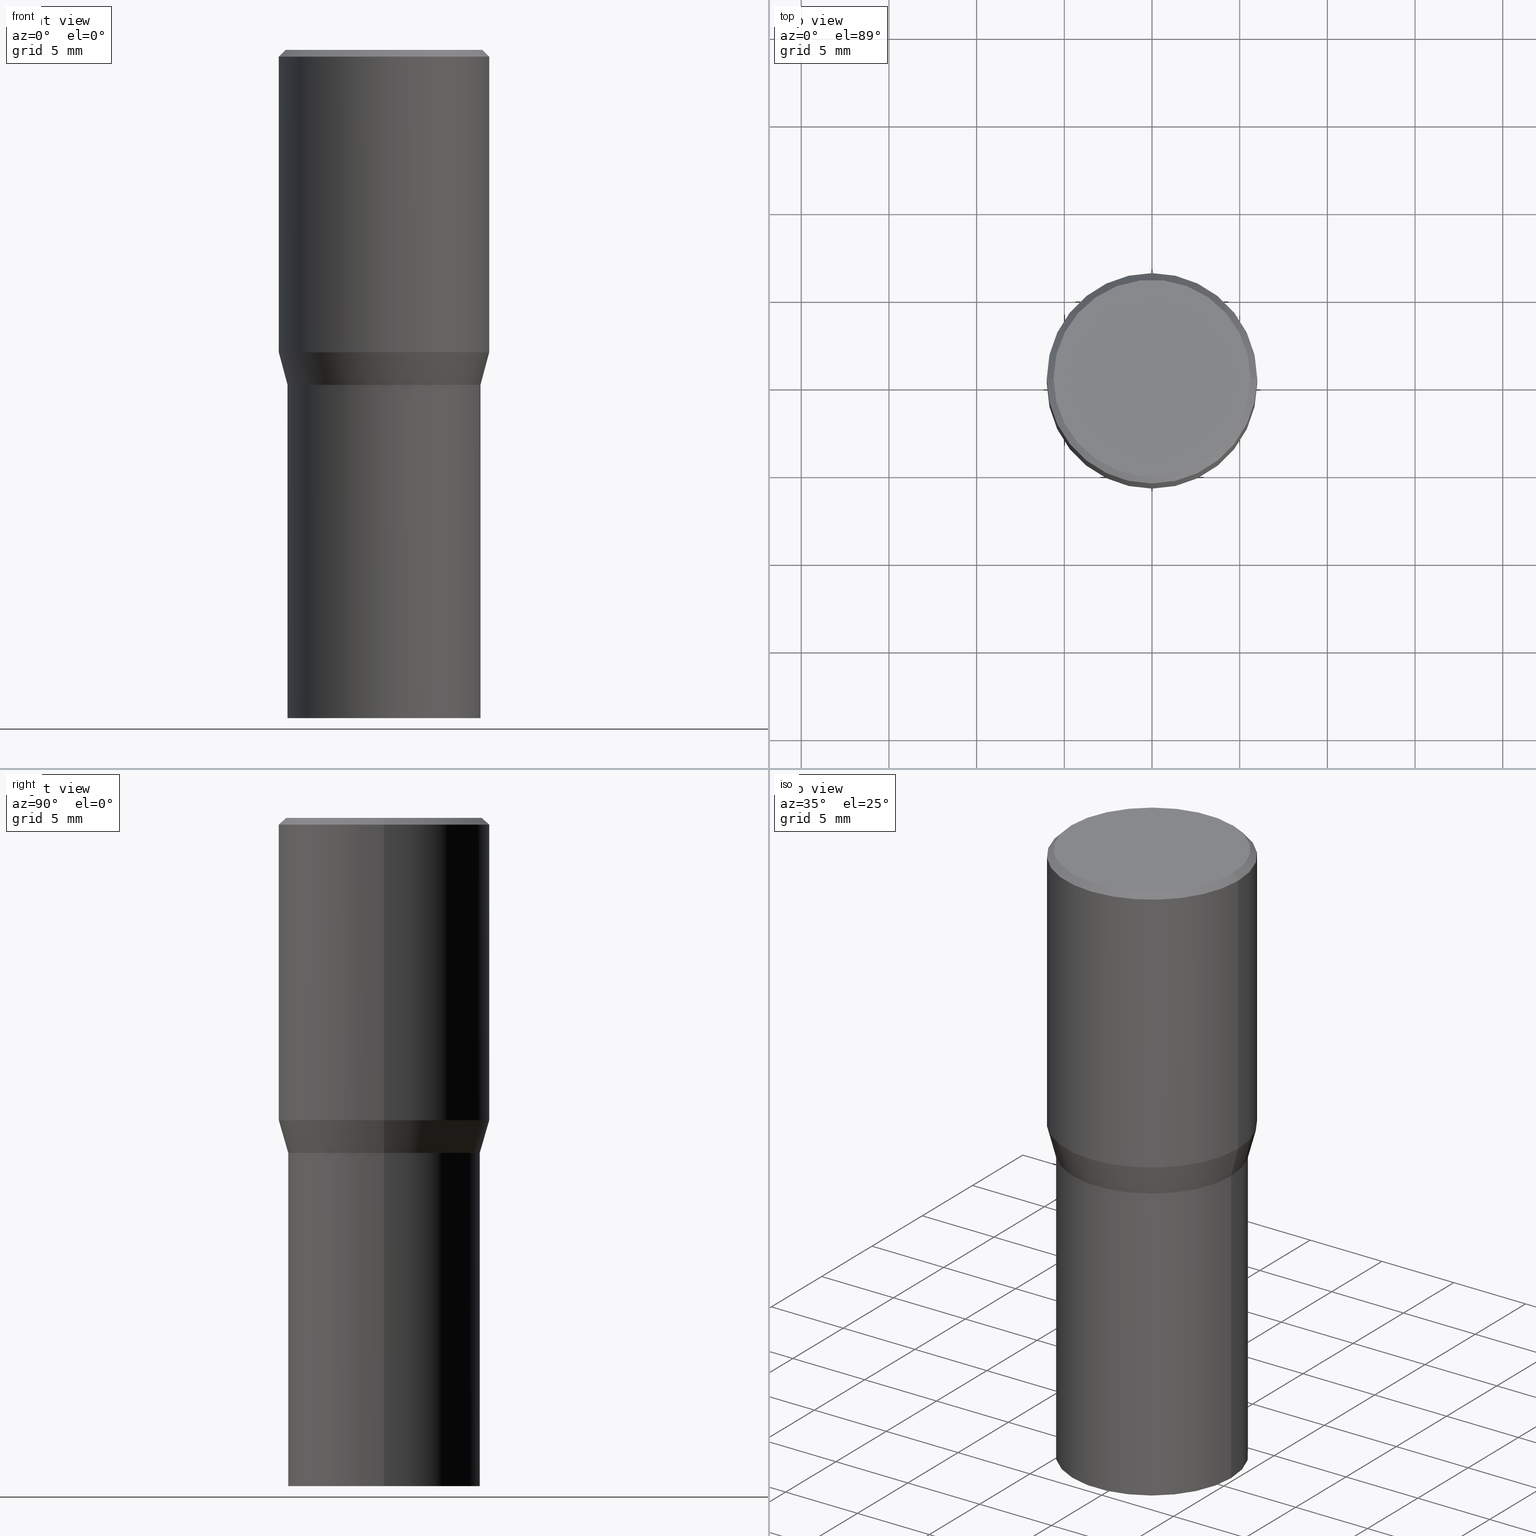
[diagram: canonical four-view strip — front | top / right | iso, engineering-drawing reading convention]
A machine part, canonical four-view strip (front | top / right | iso — engineering-drawing reading convention). The complete STEP part file that produces these views, byte-faithful:
ISO-10303-21;
HEADER;
FILE_DESCRIPTION (( 'STEP AP203' ),
    '1' );
FILE_NAME ('49276.STEP',
    '2024-03-12T20:07:03',
    ( '' ),
    ( '' ),
    'SwSTEP 2.0',
    'SolidWorks 2023',
    '' );
FILE_SCHEMA (( 'CONFIG_CONTROL_DESIGN' ));
ENDSEC;

DATA;
#1 = VECTOR ( 'NONE', #439, 39.37007874015748143 ) ;
#2 = CC_DESIGN_APPROVAL ( #101, ( #182 ) ) ;
#3 = DIRECTION ( 'NONE',  ( 1.000000000000000000, -6.982962677686266711E-15, 4.876176775795935793E-29 ) ) ;
#4 = LOCAL_TIME ( 16, 7, 3.000000000000000000, #427 ) ;
#5 = VERTEX_POINT ( 'NONE', #408 ) ;
#6 = PERSON_AND_ORGANIZATION ( #405, #64 ) ;
#7 = DIRECTION ( 'NONE',  ( -1.000000000000000000, 6.982962677686266711E-15, 0.000000000000000000 ) ) ;
#8 = APPROVAL_ROLE ( '' ) ;
#9 = LINE ( 'NONE', #434, #375 ) ;
#10 = ADVANCED_FACE ( 'NONE', ( #53 ), #48, .T. ) ;
#11 = CARTESIAN_POINT ( 'NONE',  ( 0.2212000000000000077, -1.595182002131672613E-15, 4.701447564593453210E-17 ) ) ;
#12 = DIRECTION ( 'NONE',  ( -2.445468806185136877E-29, 3.491481338843145188E-15, 1.000000000000000000 ) ) ;
#13 = DIRECTION ( 'NONE',  ( 1.000000000000000000, -6.982962677686266711E-15, 0.000000000000000000 ) ) ;
#14 = EDGE_LOOP ( 'NONE', ( #140, #112, #360, #310 ) ) ;
#15 = CARTESIAN_POINT ( 'NONE',  ( 0.2160500000000000198, -4.134263053324163313E-15, -0.7519999999999998908 ) ) ;
#16 = AXIS2_PLACEMENT_3D ( 'NONE', #93, #60, #86 ) ;
#17 = SECURITY_CLASSIFICATION ( '', '', #30 ) ;
#18 = DIRECTION ( 'NONE',  ( 1.000000000000000000, -6.982962677686266711E-15, 0.000000000000000000 ) ) ;
#19 = CARTESIAN_POINT ( 'NONE',  ( 0.000000000000000000, 0.000000000000000000, 0.000000000000000000 ) ) ;
#20 = EDGE_LOOP ( 'NONE', ( #74, #349 ) ) ;
#21 = CC_DESIGN_PERSON_AND_ORGANIZATION_ASSIGNMENT ( #217, #391, ( #17 ) ) ;
#22 = DIMENSIONAL_EXPONENTS ( 1.000000000000000000, 0.000000000000000000, 0.000000000000000000, 0.000000000000000000, 0.000000000000000000, 0.000000000000000000, 0.000000000000000000 ) ;
#23 = CONICAL_SURFACE ( 'NONE', #87, 0.2361999999999999933, 0.7853981633974459475 ) ;
#24 = DIRECTION ( 'NONE',  ( -2.445468806185136597E-29, 3.491481338843145583E-15, 1.000000000000000000 ) ) ;
#25 = AXIS2_PLACEMENT_3D ( 'NONE', #65, #346, #26 ) ;
#26 = DIRECTION ( 'NONE',  ( 1.000000000000000000, 0.000000000000000000, 0.000000000000000000 ) ) ;
#27 = ORIENTED_EDGE ( 'NONE', *, *, #52, .F. ) ;
#28 = CARTESIAN_POINT ( 'NONE',  ( 1.838992542251222813E-29, -2.625593966810045497E-15, -0.7520000000000001128 ) ) ;
#29 = AXIS2_PLACEMENT_3D ( 'NONE', #19, #219, #267 ) ;
#30 = SECURITY_CLASSIFICATION_LEVEL ( 'unclassified' ) ;
#31 = DIRECTION ( 'NONE',  ( 1.000000000000000000, -6.982962677686265922E-15, 4.876176775795935793E-29 ) ) ;
#32 = DATE_TIME_ROLE ( 'creation_date' ) ;
#33 = PLANE ( 'NONE',  #432 ) ;
#34 = ORIENTED_EDGE ( 'NONE', *, *, #447, .F. ) ;
#35 = PERSON_AND_ORGANIZATION_ROLE ( 'design_supplier' ) ;
#36 = DIRECTION ( 'NONE',  ( 1.000000000000000000, -6.982962677686266711E-15, 0.000000000000000000 ) ) ;
#37 = ORIENTED_EDGE ( 'NONE', *, *, #436, .T. ) ;
#38 = ORIENTED_EDGE ( 'NONE', *, *, #144, .F. ) ;
#39 = PERSON_AND_ORGANIZATION ( #405, #64 ) ;
#40 = CONICAL_SURFACE ( 'NONE', #235, 0.2160500000000000198, 0.7853981633977554777 ) ;
#41 = DIRECTION ( 'NONE',  ( -2.445468806185136597E-29, 3.491481338843145583E-15, 1.000000000000000000 ) ) ;
#42 = VERTEX_POINT ( 'NONE', #189 ) ;
#43 = COORDINATED_UNIVERSAL_TIME_OFFSET ( 5, 0, .BEHIND. ) ;
#44 = CARTESIAN_POINT ( 'NONE',  ( 3.668203209277704895E-29, -5.237222008264718177E-15, -1.500000000000000222 ) ) ;
#45 = EDGE_CURVE ( 'NONE', #288, #167, #221, .T. ) ;
#46 = APPLICATION_CONTEXT ( 'configuration controlled 3d designs of mechanical parts and assemblies' ) ;
#47 = FACE_OUTER_BOUND ( 'NONE', #426, .T. ) ;
#48 = CONICAL_SURFACE ( 'NONE', #16, 0.2165500000000000203, 0.2617993877991505736 ) ;
#49 = PLANE ( 'NONE',  #365 ) ;
#50 = AXIS2_PLACEMENT_3D ( 'NONE', #56, #297, #123 ) ;
#51 = DIRECTION ( 'NONE',  ( -1.000000000000000000, 6.982962677686266711E-15, 0.000000000000000000 ) ) ;
#52 = EDGE_CURVE ( 'NONE', #55, #5, #54, .T. ) ;
#53 = FACE_OUTER_BOUND ( 'NONE', #395, .T. ) ;
#54 = LINE ( 'NONE', #205, #192 ) ;
#55 = VERTEX_POINT ( 'NONE', #366 ) ;
#56 = CARTESIAN_POINT ( 'NONE',  ( 1.838992542251222813E-29, -2.625593966810045497E-15, -0.7520000000000001128 ) ) ;
#57 = ORIENTED_EDGE ( 'NONE', *, *, #118, .T. ) ;
#58 = DIRECTION ( 'NONE',  ( -2.445468806185136597E-29, 3.491481338843145583E-15, 1.000000000000000000 ) ) ;
#59 = CIRCLE ( 'NONE', #343, 0.2160500000000000198 ) ;
#60 = DIRECTION ( 'NONE',  ( -2.445468806185136597E-29, 3.491481338843145583E-15, 1.000000000000000000 ) ) ;
#61 = CYLINDRICAL_SURFACE ( 'NONE', #81, 0.2361999999999999933 ) ;
#62 = ADVANCED_FACE ( 'NONE', ( #251 ), #78, .F. ) ;
#63 = FACE_OUTER_BOUND ( 'NONE', #14, .T. ) ;
#64 = ORGANIZATION ( 'UNSPECIFIED', 'UNSPECIFIED', '' ) ;
#65 = CARTESIAN_POINT ( 'NONE',  ( 0.000000000000000000, 0.000000000000000000, 0.000000000000000000 ) ) ;
#66 = EDGE_CURVE ( 'NONE', #79, #252, #308, .T. ) ;
#67 = ORIENTED_EDGE ( 'NONE', *, *, #316, .T. ) ;
#68 = DIRECTION ( 'NONE',  ( -2.445468806185136597E-29, 3.491481338843145583E-15, 1.000000000000000000 ) ) ;
#69 = APPROVAL_STATUS ( 'not_yet_approved' ) ;
#70 = AXIS2_PLACEMENT_3D ( 'NONE', #164, #387, #419 ) ;
#71 = ORIENTED_EDGE ( 'NONE', *, *, #447, .T. ) ;
#72 = APPROVAL_DATE_TIME ( #104, #369 ) ;
#73 = FACE_OUTER_BOUND ( 'NONE', #133, .T. ) ;
#74 = ORIENTED_EDGE ( 'NONE', *, *, #45, .F. ) ;
#75 = DATE_AND_TIME ( #254, #177 ) ;
#76 = DIRECTION ( 'NONE',  ( 2.438088387897960049E-29, -3.491481338843145188E-15, -1.000000000000000000 ) ) ;
#77 = ORIENTED_EDGE ( 'NONE', *, *, #389, .F. ) ;
#78 = PLANE ( 'NONE',  #351 ) ;
#79 = VERTEX_POINT ( 'NONE', #170 ) ;
#80 = CALENDAR_DATE ( 2024, 12, 3 ) ;
#81 = AXIS2_PLACEMENT_3D ( 'NONE', #272, #100, #198 ) ;
#82 = DIRECTION ( 'NONE',  ( -0.7071067811867647324, 7.493145998871139866E-15, 0.7071067811863303021 ) ) ;
#83 = DIRECTION ( 'NONE',  ( 0.7071067811865459074, -7.319954787623251312E-15, -0.7071067811865492381 ) ) ;
#84 = EDGE_CURVE ( 'NONE', #278, #461, #342, .T. ) ;
#85 = DIRECTION ( 'NONE',  ( 1.000000000000000000, -6.982962677686266711E-15, 0.000000000000000000 ) ) ;
#86 = DIRECTION ( 'NONE',  ( 1.000000000000000000, -6.982962677686266711E-15, 0.000000000000000000 ) ) ;
#87 = AXIS2_PLACEMENT_3D ( 'NONE', #323, #117, #7 ) ;
#88 = CARTESIAN_POINT ( 'NONE',  ( 0.2165500000000001035, -1.512160567852961809E-15, 1.055936080798610456E-29 ) ) ;
#89 = CC_DESIGN_SECURITY_CLASSIFICATION ( #17, ( #321 ) ) ;
#90 = EDGE_LOOP ( 'NONE', ( #397, #300, #243, #454 ) ) ;
#91 = CARTESIAN_POINT ( 'NONE',  ( 3.668203209277705088E-31, -5.237222008264718399E-17, -0.01499999999999999944 ) ) ;
#92 = CARTESIAN_POINT ( 'NONE',  ( 3.576687321579069994E-29, -5.368277968210015545E-15, -1.500000000000000222 ) ) ;
#93 = CARTESIAN_POINT ( 'NONE',  ( 1.838992542251222813E-29, -2.625593966810045497E-15, -0.7520000000000001128 ) ) ;
#94 = VERTEX_POINT ( 'NONE', #138 ) ;
#95 = FACE_OUTER_BOUND ( 'NONE', #356, .T. ) ;
#96 = ADVANCED_FACE ( 'NONE', ( #73 ), #208, .F. ) ;
#97 = DIRECTION ( 'NONE',  ( -2.445468806185136597E-29, 3.491481338843145583E-15, 1.000000000000000000 ) ) ;
#98 =( LENGTH_UNIT ( ) NAMED_UNIT ( * ) SI_UNIT ( $, .METRE. ) );
#99 = LOCAL_TIME ( 16, 7, 3.000000000000000000, #43 ) ;
#100 = DIRECTION ( 'NONE',  ( -2.445468806185136597E-29, 3.491481338843145583E-15, 1.000000000000000000 ) ) ;
#101 = APPROVAL ( #325, 'UNSPECIFIED' ) ;
#102 = CALENDAR_DATE ( 2024, 12, 3 ) ;
#103 = ORIENTED_EDGE ( 'NONE', *, *, #121, .F. ) ;
#104 = DATE_AND_TIME ( #210, #216 ) ;
#105 = LINE ( 'NONE', #175, #1 ) ;
#106 = CIRCLE ( 'NONE', #328, 0.2212000000000000077 ) ;
#107 = CARTESIAN_POINT ( 'NONE',  ( 1.512160567852979361E-15, 0.2165499999999973835, -0.7520000000000008900 ) ) ;
#108 = EDGE_LOOP ( 'NONE', ( #67, #306, #314, #27 ) ) ;
#109 = ORIENTED_EDGE ( 'NONE', *, *, #185, .T. ) ;
#110 = PRODUCT_DEFINITION_SHAPE ( 'NONE', 'NONE',  #182 ) ;
#111 = LINE ( 'NONE', #372, #416 ) ;
#112 = ORIENTED_EDGE ( 'NONE', *, *, #442, .T. ) ;
#113 = CALENDAR_DATE ( 2024, 12, 3 ) ;
#114 = DIRECTION ( 'NONE',  ( -2.445468806185136597E-29, 3.491481338843145583E-15, 1.000000000000000000 ) ) ;
#115 = AXIS2_PLACEMENT_3D ( 'NONE', #290, #213, #257 ) ;
#116 = AXIS2_PLACEMENT_3D ( 'NONE', #28, #165, #377 ) ;
#117 = DIRECTION ( 'NONE',  ( 2.445468806185136597E-29, -3.491481338843145583E-15, -1.000000000000000000 ) ) ;
#118 = EDGE_CURVE ( 'NONE', #42, #5, #363, .T. ) ;
#119 = FACE_OUTER_BOUND ( 'NONE', #108, .T. ) ;
#120 = DIRECTION ( 'NONE',  ( -2.445468806185136597E-29, 3.491481338843145583E-15, 1.000000000000000000 ) ) ;
#121 = EDGE_CURVE ( 'NONE', #167, #461, #9, .T. ) ;
#122 = DIRECTION ( 'NONE',  ( -2.445468806185136597E-29, 3.491481338843145583E-15, 1.000000000000000000 ) ) ;
#123 = DIRECTION ( 'NONE',  ( 1.000000000000000000, -6.982962677686266711E-15, 0.000000000000000000 ) ) ;
#124 = DIRECTION ( 'NONE',  ( 2.445468806185136597E-29, -3.491481338843145583E-15, -1.000000000000000000 ) ) ;
#125 = EDGE_CURVE ( 'NONE', #146, #155, #415, .T. ) ;
#126 = FACE_OUTER_BOUND ( 'NONE', #347, .T. ) ;
#127 = AXIS2_PLACEMENT_3D ( 'NONE', #211, #114, #464 ) ;
#128 = AXIS2_PLACEMENT_3D ( 'NONE', #371, #124, #51 ) ;
#129 =( NAMED_UNIT ( * ) PLANE_ANGLE_UNIT ( ) SI_UNIT ( $, .RADIAN. ) );
#130 = ADVANCED_FACE ( 'NONE', ( #286 ), #40, .T. ) ;
#131 = CARTESIAN_POINT ( 'NONE',  ( 0.000000000000000000, 0.000000000000000000, 0.000000000000000000 ) ) ;
#132 = AXIS2_PLACEMENT_3D ( 'NONE', #260, #24, #18 ) ;
#133 = EDGE_LOOP ( 'NONE', ( #209, #249, #266, #212 ) ) ;
#134 = CARTESIAN_POINT ( 'NONE',  ( 1.838992542251222532E-29, -2.625593966810045103E-15, -0.7519999999999998908 ) ) ;
#135 = APPROVAL_STATUS ( 'not_yet_approved' ) ;
#136 = CARTESIAN_POINT ( 'NONE',  ( -0.2160500000000000198, -1.087817159026237112E-15, -0.7519999999999998908 ) ) ;
#137 = ADVANCED_FACE ( 'NONE', ( #183 ), #33, .F. ) ;
#138 = CARTESIAN_POINT ( 'NONE',  ( -0.2212000000000000077, 1.570817454345525709E-15, 4.701447564591265970E-17 ) ) ;
#139 = APPROVAL_PERSON_ORGANIZATION ( #279, #101, #174 ) ;
#140 = ORIENTED_EDGE ( 'NONE', *, *, #233, .F. ) ;
#141 = APPROVAL_DATE_TIME ( #400, #101 ) ;
#142 = DIRECTION ( 'NONE',  ( 1.000000000000000000, -6.982962677686264344E-15, 0.000000000000000000 ) ) ;
#143 = ORIENTED_EDGE ( 'NONE', *, *, #298, .T. ) ;
#144 = EDGE_CURVE ( 'NONE', #461, #278, #271, .T. ) ;
#145 = DESIGN_CONTEXT ( 'detailed design', #46, 'design' ) ;
#146 = VERTEX_POINT ( 'NONE', #180 ) ;
#147 = LINE ( 'NONE', #218, #382 ) ;
#148 = ORIENTED_EDGE ( 'NONE', *, *, #425, .T. ) ;
#149 = ADVANCED_FACE ( 'NONE', ( #255 ), #23, .T. ) ;
#150 = CARTESIAN_POINT ( 'NONE',  ( 1.838992542251222532E-29, -2.625593966810045103E-15, -0.7519999999999998908 ) ) ;
#151 = AXIS2_PLACEMENT_3D ( 'NONE', #396, #319, #3 ) ;
#152 = DIRECTION ( 'NONE',  ( 1.000000000000000000, -6.982962677686266711E-15, 0.000000000000000000 ) ) ;
#153 = DIRECTION ( 'NONE',  ( 1.000000000000000000, -6.982962677686267499E-15, 4.877828720335458505E-29 ) ) ;
#154 = LINE ( 'NONE', #446, #457 ) ;
#155 = VERTEX_POINT ( 'NONE', #403 ) ;
#156 = FACE_OUTER_BOUND ( 'NONE', #90, .T. ) ;
#157 = AXIS2_PLACEMENT_3D ( 'NONE', #228, #120, #411 ) ;
#158 = ORIENTED_EDGE ( 'NONE', *, *, #242, .F. ) ;
#159 = LINE ( 'NONE', #455, #370 ) ;
#160 = CC_DESIGN_PERSON_AND_ORGANIZATION_ASSIGNMENT ( #6, #318, ( #321 ) ) ;
#161 = CARTESIAN_POINT ( 'NONE',  ( 3.668203209277704895E-29, -5.237222008264718177E-15, -1.500000000000000222 ) ) ;
#162 = DIRECTION ( 'NONE',  ( 1.000000000000000000, -6.982962677686266711E-15, 4.876176775795935793E-29 ) ) ;
#163 = CONICAL_SURFACE ( 'NONE', #277, 0.2165500000000000203, 0.2617993877991505736 ) ;
#164 = CARTESIAN_POINT ( 'NONE',  ( 1.659654580432621677E-29, -2.369546886817807077E-15, -0.6786652016312719748 ) ) ;
#165 = DIRECTION ( 'NONE',  ( -2.445468806185136597E-29, 3.491481338843145583E-15, 1.000000000000000000 ) ) ;
#166 = CIRCLE ( 'NONE', #157, 0.2361999999999999933 ) ;
#167 = VERTEX_POINT ( 'NONE', #136 ) ;
#168 = EDGE_CURVE ( 'NONE', #288, #278, #105, .T. ) ;
#169 = COORDINATED_UNIVERSAL_TIME_OFFSET ( 5, 0, .BEHIND. ) ;
#170 = CARTESIAN_POINT ( 'NONE',  ( 0.2165500000000000203, -4.137754534663007109E-15, -0.7520000000000001128 ) ) ;
#171 = ORIENTED_EDGE ( 'NONE', *, *, #303, .T. ) ;
#172 = CARTESIAN_POINT ( 'NONE',  ( 1.838992542251222813E-29, -2.625593966810045497E-15, -0.7520000000000001128 ) ) ;
#173 = ORIENTED_EDGE ( 'NONE', *, *, #268, .T. ) ;
#174 = APPROVAL_ROLE ( '' ) ;
#175 = CARTESIAN_POINT ( 'NONE',  ( 0.2160500000000000198, -4.134263053324163313E-15, -0.7519999999999998908 ) ) ;
#176 = EDGE_CURVE ( 'NONE', #322, #240, #401, .T. ) ;
#177 = LOCAL_TIME ( 16, 7, 3.000000000000000000, #244 ) ;
#178 = EDGE_LOOP ( 'NONE', ( #359, #373 ) ) ;
#179 = APPROVAL_DATE_TIME ( #438, #239 ) ;
#180 = CARTESIAN_POINT ( 'NONE',  ( -0.2165500000000000203, -2.392727693248884740E-15, -1.500000000000000222 ) ) ;
#181 = COORDINATED_UNIVERSAL_TIME_OFFSET ( 5, 0, .BEHIND. ) ;
#182 = PRODUCT_DEFINITION ( 'UNKNOWN', '', #321, #145 ) ;
#183 = FACE_OUTER_BOUND ( 'NONE', #178, .T. ) ;
#184 = DIRECTION ( 'NONE',  ( -2.438088387897960049E-29, 3.491481338843145188E-15, 1.000000000000000000 ) ) ;
#185 = EDGE_CURVE ( 'NONE', #280, #55, #147, .T. ) ;
#186 = CARTESIAN_POINT ( 'NONE',  ( 0.2165500000000000203, -4.137754534663007109E-15, -0.7520000000000001128 ) ) ;
#187 = EDGE_LOOP ( 'NONE', ( #429, #465, #148, #57 ) ) ;
#188 = DIRECTION ( 'NONE',  ( 2.438088387897960049E-29, -3.491481338843145188E-15, -1.000000000000000000 ) ) ;
#189 = CARTESIAN_POINT ( 'NONE',  ( -0.2361999999999999933, 4.673423884151294145E-16, -0.01499999999999999944 ) ) ;
#190 = ORIENTED_EDGE ( 'NONE', *, *, #298, .F. ) ;
#191 = FACE_OUTER_BOUND ( 'NONE', #246, .T. ) ;
#192 = VECTOR ( 'NONE', #398, 39.37007874015748143 ) ;
#193 = ORIENTED_EDGE ( 'NONE', *, *, #442, .F. ) ;
#194 = AXIS2_PLACEMENT_3D ( 'NONE', #91, #330, #152 ) ;
#195 = DIRECTION ( 'NONE',  ( -2.445468806185136597E-29, 3.491481338843145583E-15, 1.000000000000000000 ) ) ;
#196 = LENGTH_MEASURE_WITH_UNIT ( LENGTH_MEASURE( 0.02539999999999999897 ), #98 );
#197 = CARTESIAN_POINT ( 'NONE',  ( -0.2361999999999999933, 1.597003564386848854E-15, -0.01499999999999999944 ) ) ;
#198 = DIRECTION ( 'NONE',  ( 1.000000000000000000, -6.982962677686266711E-15, 4.876176775795936353E-29 ) ) ;
#199 = AXIS2_PLACEMENT_3D ( 'NONE', #449, #122, #263 ) ;
#200 =( CONVERSION_BASED_UNIT ( 'INCH', #196 ) LENGTH_UNIT ( ) NAMED_UNIT ( #22 ) );
#201 = ORIENTED_EDGE ( 'NONE', *, *, #84, .F. ) ;
#202 = LINE ( 'NONE', #197, #352 ) ;
#203 = ADVANCED_FACE ( 'NONE', ( #466 ), #248, .T. ) ;
#204 = PERSON_AND_ORGANIZATION_ROLE ( 'design_owner' ) ;
#205 = CARTESIAN_POINT ( 'NONE',  ( 0.2361999999999999933, -1.649375784469496131E-15, 1.151752954443000088E-29 ) ) ;
#206 = AXIS2_PLACEMENT_3D ( 'NONE', #353, #41, #282 ) ;
#207 = SHAPE_DEFINITION_REPRESENTATION ( #110, #412 ) ;
#208 = CYLINDRICAL_SURFACE ( 'NONE', #443, 0.2165500000000001035 ) ;
#209 = ORIENTED_EDGE ( 'NONE', *, *, #268, .F. ) ;
#210 = CALENDAR_DATE ( 2024, 12, 3 ) ;
#211 = CARTESIAN_POINT ( 'NONE',  ( 1.837769807848130011E-29, -2.623848226140623599E-15, -0.7515000000000000568 ) ) ;
#212 = ORIENTED_EDGE ( 'NONE', *, *, #338, .F. ) ;
#213 = DIRECTION ( 'NONE',  ( -2.445468806185136597E-29, 3.491481338843145583E-15, 1.000000000000000000 ) ) ;
#214 = CLOSED_SHELL ( 'NONE', ( #96, #238, #341, #292, #10, #354, #417, #149, #253, #62, #130, #380 ) ) ;
#215 = CIRCLE ( 'NONE', #70, 0.2361999999999999933 ) ;
#216 = LOCAL_TIME ( 16, 7, 3.000000000000000000, #181 ) ;
#217 = PERSON_AND_ORGANIZATION ( #405, #64 ) ;
#218 = CARTESIAN_POINT ( 'NONE',  ( 0.2165500000000000203, -4.137754534663007109E-15, -0.7520000000000001128 ) ) ;
#219 = DIRECTION ( 'NONE',  ( -2.445468806185136597E-29, 3.491481338843145583E-15, 1.000000000000000000 ) ) ;
#220 = CARTESIAN_POINT ( 'NONE',  ( -0.2165500000000000203, -2.392727693248884740E-15, -0.7520000000000001128 ) ) ;
#221 = CIRCLE ( 'NONE', #132, 0.2160500000000000198 ) ;
#222 = VECTOR ( 'NONE', #384, 39.37007874015748143 ) ;
#223 = DIRECTION ( 'NONE',  ( -1.000000000000000000, 6.982962677686265922E-15, -4.876176775795935793E-29 ) ) ;
#224 = ORIENTED_EDGE ( 'NONE', *, *, #45, .T. ) ;
#225 = PLANE ( 'NONE',  #230 ) ;
#226 = MANIFOLD_SOLID_BREP ( 'Body-Move/Copy2[1]', #294 ) ;
#227 = ORIENTED_EDGE ( 'NONE', *, *, #125, .F. ) ;
#228 = CARTESIAN_POINT ( 'NONE',  ( 1.659654580432621677E-29, -2.369546886817807077E-15, -0.6786652016312719748 ) ) ;
#229 = AXIS2_PLACEMENT_3D ( 'NONE', #44, #358, #142 ) ;
#230 = AXIS2_PLACEMENT_3D ( 'NONE', #368, #188, #223 ) ;
#231 = DIRECTION ( 'NONE',  ( -2.445468806185136877E-29, 3.491481338843145188E-15, 1.000000000000000000 ) ) ;
#232 = DIRECTION ( 'NONE',  ( 1.000000000000000000, -6.982962677686266711E-15, 0.000000000000000000 ) ) ;
#233 = EDGE_CURVE ( 'NONE', #240, #42, #111, .T. ) ;
#234 = CARTESIAN_POINT ( 'NONE',  ( 0.000000000000000000, 0.000000000000000000, 0.000000000000000000 ) ) ;
#235 = AXIS2_PLACEMENT_3D ( 'NONE', #150, #428, #36 ) ;
#236 = CC_DESIGN_APPROVAL ( #239, ( #321 ) ) ;
#237 = CARTESIAN_POINT ( 'NONE',  ( -0.2165500000000001035, 1.538680294288497688E-15, -1.065195393794700483E-29 ) ) ;
#238 = ADVANCED_FACE ( 'NONE', ( #327 ), #402, .T. ) ;
#239 = APPROVAL ( #69, 'UNSPECIFIED' ) ;
#240 = VERTEX_POINT ( 'NONE', #299 ) ;
#241 = DATE_AND_TIME ( #102, #4 ) ;
#242 = EDGE_CURVE ( 'NONE', #252, #79, #247, .T. ) ;
#243 = ORIENTED_EDGE ( 'NONE', *, *, #273, .T. ) ;
#244 = COORDINATED_UNIVERSAL_TIME_OFFSET ( 5, 0, .BEHIND. ) ;
#245 = CARTESIAN_POINT ( 'NONE',  ( -0.2165500000000000203, -1.086913672521548598E-15, -0.7520000000000001128 ) ) ;
#246 = EDGE_LOOP ( 'NONE', ( #34, #227 ) ) ;
#247 = CIRCLE ( 'NONE', #336, 0.2165500000000000203 ) ;
#248 = CYLINDRICAL_SURFACE ( 'NONE', #151, 0.2165500000000000203 ) ;
#249 = ORIENTED_EDGE ( 'NONE', *, *, #462, .T. ) ;
#250 = EDGE_LOOP ( 'NONE', ( #265, #173, #109, #193 ) ) ;
#251 = FACE_OUTER_BOUND ( 'NONE', #20, .T. ) ;
#252 = VERTEX_POINT ( 'NONE', #220 ) ;
#253 = ADVANCED_FACE ( 'NONE', ( #47 ), #225, .F. ) ;
#254 = CALENDAR_DATE ( 2024, 12, 3 ) ;
#255 = FACE_OUTER_BOUND ( 'NONE', #187, .T. ) ;
#256 = AXIS2_PLACEMENT_3D ( 'NONE', #131, #68, #378 ) ;
#257 = DIRECTION ( 'NONE',  ( 1.000000000000000000, -6.982962677686266711E-15, 0.000000000000000000 ) ) ;
#258 = CARTESIAN_POINT ( 'NONE',  ( 1.838992542251222813E-29, -2.625593966810045497E-15, -0.7520000000000001128 ) ) ;
#259 = LINE ( 'NONE', #88, #295 ) ;
#260 = CARTESIAN_POINT ( 'NONE',  ( 1.838992542251222532E-29, -2.625593966810045103E-15, -0.7519999999999998908 ) ) ;
#261 = ADVANCED_FACE ( 'NONE', ( #191 ), #49, .F. ) ;
#262 = CIRCLE ( 'NONE', #309, 0.2165500000000000203 ) ;
#263 = DIRECTION ( 'NONE',  ( 1.000000000000000000, -6.982962677686267499E-15, 4.877828720335458505E-29 ) ) ;
#264 = ORIENTED_EDGE ( 'NONE', *, *, #168, .T. ) ;
#265 = ORIENTED_EDGE ( 'NONE', *, *, #176, .F. ) ;
#266 = ORIENTED_EDGE ( 'NONE', *, *, #144, .T. ) ;
#267 = DIRECTION ( 'NONE',  ( 1.000000000000000000, -6.982962677686266711E-15, 4.876176775795936353E-29 ) ) ;
#268 = EDGE_CURVE ( 'NONE', #322, #280, #409, .T. ) ;
#269 = VERTEX_POINT ( 'NONE', #11 ) ;
#270 = LINE ( 'NONE', #274, #433 ) ;
#271 = CIRCLE ( 'NONE', #127, 0.2165500000000002145 ) ;
#272 = CARTESIAN_POINT ( 'NONE',  ( 0.000000000000000000, 0.000000000000000000, 0.000000000000000000 ) ) ;
#273 = EDGE_CURVE ( 'NONE', #5, #42, #304, .T. ) ;
#274 = CARTESIAN_POINT ( 'NONE',  ( 0.2165500000000000203, -1.512160567852961217E-15, 1.055936080798610036E-29 ) ) ;
#275 = MECHANICAL_CONTEXT ( 'NONE', #430, 'mechanical' ) ;
#276 = PERSON_AND_ORGANIZATION ( #405, #64 ) ;
#277 = AXIS2_PLACEMENT_3D ( 'NONE', #301, #58, #337 ) ;
#278 = VERTEX_POINT ( 'NONE', #407 ) ;
#279 = PERSON_AND_ORGANIZATION ( #405, #64 ) ;
#280 = VERTEX_POINT ( 'NONE', #186 ) ;
#281 = APPROVAL_ROLE ( '' ) ;
#282 = DIRECTION ( 'NONE',  ( 1.000000000000000000, -6.982962677686266711E-15, 0.000000000000000000 ) ) ;
#283 = ORIENTED_EDGE ( 'NONE', *, *, #168, .F. ) ;
#284 = PRODUCT ( '49276', '49276', '', ( #275 ) ) ;
#285 = PRODUCT_RELATED_PRODUCT_CATEGORY ( 'detail', '', ( #284 ) ) ;
#286 = FACE_OUTER_BOUND ( 'NONE', #331, .T. ) ;
#287 = CONICAL_SURFACE ( 'NONE', #128, 0.2361999999999999933, 0.7853981633974459475 ) ;
#288 = VERTEX_POINT ( 'NONE', #15 ) ;
#289 = DIRECTION ( 'NONE',  ( -1.000000000000000000, 6.982962677686265922E-15, -4.876176775795935793E-29 ) ) ;
#290 = CARTESIAN_POINT ( 'NONE',  ( 1.838992542251222813E-29, -2.625593966810045497E-15, -0.7520000000000001128 ) ) ;
#291 = EDGE_LOOP ( 'NONE', ( #224, #390, #201, #283 ) ) ;
#292 = ADVANCED_FACE ( 'NONE', ( #119 ), #296, .T. ) ;
#293 = CARTESIAN_POINT ( 'NONE',  ( 0.000000000000000000, 0.000000000000000000, 0.000000000000000000 ) ) ;
#294 = CLOSED_SHELL ( 'NONE', ( #406, #261, #203, #137 ) ) ;
#295 = VECTOR ( 'NONE', #374, 39.37007874015748143 ) ;
#296 = CYLINDRICAL_SURFACE ( 'NONE', #29, 0.2361999999999999933 ) ;
#297 = DIRECTION ( 'NONE',  ( -2.445468806185136597E-29, 3.491481338843145583E-15, 1.000000000000000000 ) ) ;
#298 = EDGE_CURVE ( 'NONE', #146, #252, #154, .T. ) ;
#299 = CARTESIAN_POINT ( 'NONE',  ( -0.2361999999999999933, -6.912449449524502887E-16, -0.6786652016312719748 ) ) ;
#300 = ORIENTED_EDGE ( 'NONE', *, *, #333, .T. ) ;
#301 = CARTESIAN_POINT ( 'NONE',  ( 1.838992542251222813E-29, -2.625593966810045497E-15, -0.7520000000000001128 ) ) ;
#302 = DIRECTION ( 'NONE',  ( -2.445468806185136597E-29, 3.491481338843145583E-15, 1.000000000000000000 ) ) ;
#303 = EDGE_CURVE ( 'NONE', #94, #269, #106, .T. ) ;
#304 = CIRCLE ( 'NONE', #194, 0.2361999999999999933 ) ;
#305 = CC_DESIGN_PERSON_AND_ORGANIZATION_ASSIGNMENT ( #388, #463, ( #182 ) ) ;
#306 = ORIENTED_EDGE ( 'NONE', *, *, #233, .T. ) ;
#307 = CARTESIAN_POINT ( 'NONE',  ( -0.2165500000000002145, -1.085167931852125319E-15, -0.7515000000000000568 ) ) ;
#308 = CIRCLE ( 'NONE', #115, 0.2165500000000000203 ) ;
#309 = AXIS2_PLACEMENT_3D ( 'NONE', #161, #381, #340 ) ;
#310 = ORIENTED_EDGE ( 'NONE', *, *, #118, .F. ) ;
#311 = PERSON_AND_ORGANIZATION ( #405, #64 ) ;
#312 = DIRECTION ( 'NONE',  ( 1.000000000000000000, -6.982962677686266711E-15, 4.876176775795935793E-29 ) ) ;
#313 = CC_DESIGN_DATE_AND_TIME_ASSIGNMENT ( #241, #350, ( #17 ) ) ;
#314 = ORIENTED_EDGE ( 'NONE', *, *, #273, .F. ) ;
#315 = DIRECTION ( 'NONE',  ( -0.2588190451025218497, 5.211531920934553408E-15, 0.9659258262890679791 ) ) ;
#316 = EDGE_CURVE ( 'NONE', #55, #240, #166, .T. ) ;
#317 = ORIENTED_EDGE ( 'NONE', *, *, #364, .F. ) ;
#318 = PERSON_AND_ORGANIZATION_ROLE ( 'creator' ) ;
#319 = DIRECTION ( 'NONE',  ( -2.445468806185136597E-29, 3.491481338843145583E-15, 1.000000000000000000 ) ) ;
#320 = VECTOR ( 'NONE', #315, 39.37007874015748143 ) ;
#321 = PRODUCT_DEFINITION_FORMATION_WITH_SPECIFIED_SOURCE ( 'ANY', '', #284, .NOT_KNOWN. ) ;
#322 = VERTEX_POINT ( 'NONE', #332 ) ;
#323 = CARTESIAN_POINT ( 'NONE',  ( 3.668203209277705088E-31, -5.237222008264718399E-17, -0.01499999999999999944 ) ) ;
#324 = ORIENTED_EDGE ( 'NONE', *, *, #176, .T. ) ;
#325 = APPROVAL_STATUS ( 'not_yet_approved' ) ;
#326 = DIRECTION ( 'NONE',  ( -2.438088387897960049E-29, 3.491481338843145188E-15, 1.000000000000000000 ) ) ;
#327 = FACE_OUTER_BOUND ( 'NONE', #291, .T. ) ;
#328 = AXIS2_PLACEMENT_3D ( 'NONE', #334, #195, #153 ) ;
#329 = CC_DESIGN_APPROVAL ( #369, ( #17 ) ) ;
#330 = DIRECTION ( 'NONE',  ( -2.445468806185136597E-29, 3.491481338843145583E-15, 1.000000000000000000 ) ) ;
#331 = EDGE_LOOP ( 'NONE', ( #103, #37, #264, #38 ) ) ;
#332 = CARTESIAN_POINT ( 'NONE',  ( -0.2165500000000000203, -8.890793087369993447E-16, -0.7520000000000001128 ) ) ;
#333 = EDGE_CURVE ( 'NONE', #269, #5, #159, .T. ) ;
#334 = CARTESIAN_POINT ( 'NONE',  ( -1.149724336312568549E-45, 1.641501643732376111E-31, 4.701447564592355584E-17 ) ) ;
#335 = ORIENTED_EDGE ( 'NONE', *, *, #364, .T. ) ;
#336 = AXIS2_PLACEMENT_3D ( 'NONE', #258, #367, #85 ) ;
#337 = DIRECTION ( 'NONE',  ( 1.000000000000000000, -6.982962677686266711E-15, 0.000000000000000000 ) ) ;
#338 = EDGE_CURVE ( 'NONE', #280, #278, #259, .T. ) ;
#339 = LINE ( 'NONE', #237, #222 ) ;
#340 = DIRECTION ( 'NONE',  ( 1.000000000000000000, -6.982962677686264344E-15, 0.000000000000000000 ) ) ;
#341 = ADVANCED_FACE ( 'NONE', ( #156 ), #287, .T. ) ;
#342 = CIRCLE ( 'NONE', #206, 0.2165500000000002145 ) ;
#343 = AXIS2_PLACEMENT_3D ( 'NONE', #134, #456, #232 ) ;
#344 =( NAMED_UNIT ( * ) SI_UNIT ( $, .STERADIAN. ) SOLID_ANGLE_UNIT ( ) );
#345 = EDGE_CURVE ( 'NONE', #269, #94, #460, .T. ) ;
#346 = DIRECTION ( 'NONE',  ( 0.000000000000000000, 0.000000000000000000, 1.000000000000000000 ) ) ;
#347 = EDGE_LOOP ( 'NONE', ( #71, #143, #413, #317 ) ) ;
#348 = CYLINDRICAL_SURFACE ( 'NONE', #422, 0.2165500000000000203 ) ;
#349 = ORIENTED_EDGE ( 'NONE', *, *, #436, .F. ) ;
#350 = DATE_TIME_ROLE ( 'classification_date' ) ;
#351 = AXIS2_PLACEMENT_3D ( 'NONE', #172, #326, #31 ) ;
#352 = VECTOR ( 'NONE', #418, 39.37007874015748143 ) ;
#353 = CARTESIAN_POINT ( 'NONE',  ( 1.837769807848130011E-29, -2.623848226140623599E-15, -0.7515000000000000568 ) ) ;
#354 = ADVANCED_FACE ( 'NONE', ( #410 ), #163, .T. ) ;
#355 = DIRECTION ( 'NONE',  ( -2.445468806185136597E-29, 3.491481338843145583E-15, 1.000000000000000000 ) ) ;
#356 = EDGE_LOOP ( 'NONE', ( #357, #77, #437, #452 ) ) ;
#357 = ORIENTED_EDGE ( 'NONE', *, *, #462, .F. ) ;
#358 = DIRECTION ( 'NONE',  ( -2.445468806185136597E-29, 3.491481338843145583E-15, 1.000000000000000000 ) ) ;
#359 = ORIENTED_EDGE ( 'NONE', *, *, #66, .T. ) ;
#360 = ORIENTED_EDGE ( 'NONE', *, *, #52, .T. ) ;
#361 = APPLICATION_PROTOCOL_DEFINITION ( 'international standard', 'config_control_design', 1994, #46 ) ;
#362 = CARTESIAN_POINT ( 'NONE',  ( 3.668203209277705088E-31, -5.237222008264718399E-17, -0.01499999999999999944 ) ) ;
#363 = CIRCLE ( 'NONE', #450, 0.2361999999999999933 ) ;
#364 = EDGE_CURVE ( 'NONE', #155, #79, #270, .T. ) ;
#365 = AXIS2_PLACEMENT_3D ( 'NONE', #92, #184, #453 ) ;
#366 = CARTESIAN_POINT ( 'NONE',  ( 0.2361999999999999933, -4.018922671287303208E-15, -0.6786652016312719748 ) ) ;
#367 = DIRECTION ( 'NONE',  ( -2.445468806185136597E-29, 3.491481338843145583E-15, 1.000000000000000000 ) ) ;
#368 = CARTESIAN_POINT ( 'NONE',  ( 1.544631344304202170E-15, 0.2212000000000000077, -7.488084343291421542E-16 ) ) ;
#369 = APPROVAL ( #135, 'UNSPECIFIED' ) ;
#370 = VECTOR ( 'NONE', #83, 39.37007874015748143 ) ;
#371 = CARTESIAN_POINT ( 'NONE',  ( 3.668203209277705088E-31, -5.237222008264718399E-17, -0.01499999999999999944 ) ) ;
#372 = CARTESIAN_POINT ( 'NONE',  ( -0.2361999999999999933, 1.678301941865356591E-15, -1.161852468318208757E-29 ) ) ;
#373 = ORIENTED_EDGE ( 'NONE', *, *, #242, .T. ) ;
#374 = DIRECTION ( 'NONE',  ( -2.445468806185136877E-29, 3.491481338843145188E-15, 1.000000000000000000 ) ) ;
#375 = VECTOR ( 'NONE', #82, 39.37007874015748143 ) ;
#376 = AXIS2_PLACEMENT_3D ( 'NONE', #404, #302, #13 ) ;
#377 = DIRECTION ( 'NONE',  ( 1.000000000000000000, -6.982962677686266711E-15, 0.000000000000000000 ) ) ;
#378 = DIRECTION ( 'NONE',  ( 1.000000000000000000, -6.982962677686266711E-15, 4.876176775795935793E-29 ) ) ;
#379 = MANIFOLD_SOLID_BREP ( 'Body-Move/Copy2[2]', #214 ) ;
#380 = ADVANCED_FACE ( 'NONE', ( #95 ), #414, .F. ) ;
#381 = DIRECTION ( 'NONE',  ( -2.445468806185136597E-29, 3.491481338843145583E-15, 1.000000000000000000 ) ) ;
#382 = VECTOR ( 'NONE', #393, 39.37007874015748143 ) ;
#383 = APPROVAL_PERSON_ORGANIZATION ( #424, #239, #8 ) ;
#384 = DIRECTION ( 'NONE',  ( -2.445468806185136877E-29, 3.491481338843145188E-15, 1.000000000000000000 ) ) ;
#385 = CC_DESIGN_PERSON_AND_ORGANIZATION_ASSIGNMENT ( #276, #204, ( #284 ) ) ;
#386 = ORIENTED_EDGE ( 'NONE', *, *, #316, .F. ) ;
#387 = DIRECTION ( 'NONE',  ( -2.445468806185136597E-29, 3.491481338843145583E-15, 1.000000000000000000 ) ) ;
#388 = PERSON_AND_ORGANIZATION ( #405, #64 ) ;
#389 = EDGE_CURVE ( 'NONE', #280, #322, #445, .T. ) ;
#390 = ORIENTED_EDGE ( 'NONE', *, *, #121, .T. ) ;
#391 = PERSON_AND_ORGANIZATION_ROLE ( 'classification_officer' ) ;
#392 =( GEOMETRIC_REPRESENTATION_CONTEXT ( 3 ) GLOBAL_UNCERTAINTY_ASSIGNED_CONTEXT ( ( #421 ) ) GLOBAL_UNIT_ASSIGNED_CONTEXT ( ( #200, #129, #344 ) ) REPRESENTATION_CONTEXT ( 'NONE', 'WORKASPACE' ) );
#393 = DIRECTION ( 'NONE',  ( 0.2588190451025218497, 1.565188264969618221E-15, 0.9659258262890679791 ) ) ;
#394 = ORIENTED_EDGE ( 'NONE', *, *, #389, .T. ) ;
#395 = EDGE_LOOP ( 'NONE', ( #394, #324, #386, #399 ) ) ;
#396 = CARTESIAN_POINT ( 'NONE',  ( 0.000000000000000000, 0.000000000000000000, 0.000000000000000000 ) ) ;
#397 = ORIENTED_EDGE ( 'NONE', *, *, #345, .F. ) ;
#398 = DIRECTION ( 'NONE',  ( -2.445468806185136877E-29, 3.491481338843145188E-15, 1.000000000000000000 ) ) ;
#399 = ORIENTED_EDGE ( 'NONE', *, *, #185, .F. ) ;
#400 = DATE_AND_TIME ( #80, #99 ) ;
#401 = LINE ( 'NONE', #245, #320 ) ;
#402 = CONICAL_SURFACE ( 'NONE', #376, 0.2160500000000000198, 0.7853981633977554777 ) ;
#403 = CARTESIAN_POINT ( 'NONE',  ( 0.2165500000000000203, -6.749382576117678999E-15, -1.500000000000000222 ) ) ;
#404 = CARTESIAN_POINT ( 'NONE',  ( 1.838992542251222532E-29, -2.625593966810045103E-15, -0.7519999999999998908 ) ) ;
#405 = PERSON ( 'UNSPECIFIED', 'UNSPECIFIED', 'UNSPECIFIED', ('UNSPECIFIED'), ('UNSPECIFIED'), ('UNSPECIFIED') ) ;
#406 = ADVANCED_FACE ( 'NONE', ( #126 ), #348, .T. ) ;
#407 = CARTESIAN_POINT ( 'NONE',  ( 0.2165500000000002145, -4.136008793993586394E-15, -0.7515000000000000568 ) ) ;
#408 = CARTESIAN_POINT ( 'NONE',  ( 0.2361999999999999933, -1.701748004552143407E-15, -0.01499999999999999944 ) ) ;
#409 = CIRCLE ( 'NONE', #50, 0.2165500000000000203 ) ;
#410 = FACE_OUTER_BOUND ( 'NONE', #250, .T. ) ;
#411 = DIRECTION ( 'NONE',  ( 1.000000000000000000, -6.982962677686266711E-15, 0.000000000000000000 ) ) ;
#412 = ADVANCED_BREP_SHAPE_REPRESENTATION ( '49276', ( #226, #379, #25 ), #392 ) ;
#413 = ORIENTED_EDGE ( 'NONE', *, *, #66, .F. ) ;
#414 = CYLINDRICAL_SURFACE ( 'NONE', #256, 0.2165500000000001035 ) ;
#415 = CIRCLE ( 'NONE', #229, 0.2165500000000000203 ) ;
#416 = VECTOR ( 'NONE', #448, 39.37007874015748143 ) ;
#417 = ADVANCED_FACE ( 'NONE', ( #63 ), #61, .T. ) ;
#418 = DIRECTION ( 'NONE',  ( -0.7071067811865459074, 2.468850131082239706E-15, -0.7071067811865492381 ) ) ;
#419 = DIRECTION ( 'NONE',  ( 1.000000000000000000, -6.982962677686266711E-15, 0.000000000000000000 ) ) ;
#420 = CC_DESIGN_PERSON_AND_ORGANIZATION_ASSIGNMENT ( #39, #35, ( #321 ) ) ;
#421 = UNCERTAINTY_MEASURE_WITH_UNIT (LENGTH_MEASURE( 1.000000000000000082E-05 ), #200, 'distance_accuracy_value', 'NONE');
#422 = AXIS2_PLACEMENT_3D ( 'NONE', #234, #97, #162 ) ;
#423 = APPROVAL_PERSON_ORGANIZATION ( #311, #369, #281 ) ;
#424 = PERSON_AND_ORGANIZATION ( #405, #64 ) ;
#425 = EDGE_CURVE ( 'NONE', #94, #42, #202, .T. ) ;
#426 = EDGE_LOOP ( 'NONE', ( #171, #440 ) ) ;
#427 = COORDINATED_UNIVERSAL_TIME_OFFSET ( 5, 0, .BEHIND. ) ;
#428 = DIRECTION ( 'NONE',  ( -2.445468806185136597E-29, 3.491481338843145583E-15, 1.000000000000000000 ) ) ;
#429 = ORIENTED_EDGE ( 'NONE', *, *, #333, .F. ) ;
#430 = APPLICATION_CONTEXT ( 'configuration controlled 3d designs of mechanical parts and assemblies' ) ;
#431 = ORIENTED_EDGE ( 'NONE', *, *, #125, .T. ) ;
#432 = AXIS2_PLACEMENT_3D ( 'NONE', #107, #76, #289 ) ;
#433 = VECTOR ( 'NONE', #231, 39.37007874015748143 ) ;
#434 = CARTESIAN_POINT ( 'NONE',  ( -0.2160500000000000198, -1.090466386200348708E-15, -0.7519999999999998908 ) ) ;
#435 = EDGE_LOOP ( 'NONE', ( #190, #431, #335, #158 ) ) ;
#436 = EDGE_CURVE ( 'NONE', #167, #288, #59, .T. ) ;
#437 = ORIENTED_EDGE ( 'NONE', *, *, #338, .T. ) ;
#438 = DATE_AND_TIME ( #113, #451 ) ;
#439 = DIRECTION ( 'NONE',  ( 0.7071067811867647324, -2.468850131084532135E-15, 0.7071067811863303021 ) ) ;
#440 = ORIENTED_EDGE ( 'NONE', *, *, #345, .T. ) ;
#441 = DIRECTION ( 'NONE',  ( 1.000000000000000000, -6.982962677686266711E-15, 0.000000000000000000 ) ) ;
#442 = EDGE_CURVE ( 'NONE', #240, #55, #215, .T. ) ;
#443 = AXIS2_PLACEMENT_3D ( 'NONE', #293, #444, #312 ) ;
#444 = DIRECTION ( 'NONE',  ( -2.445468806185136597E-29, 3.491481338843145583E-15, 1.000000000000000000 ) ) ;
#445 = CIRCLE ( 'NONE', #116, 0.2165500000000000203 ) ;
#446 = CARTESIAN_POINT ( 'NONE',  ( -0.2165500000000000203, 1.538680294288497096E-15, -1.065195393794699923E-29 ) ) ;
#447 = EDGE_CURVE ( 'NONE', #155, #146, #262, .T. ) ;
#448 = DIRECTION ( 'NONE',  ( -2.445468806185136877E-29, 3.491481338843145188E-15, 1.000000000000000000 ) ) ;
#449 = CARTESIAN_POINT ( 'NONE',  ( -1.149724336312568549E-45, 1.641501643732376111E-31, 4.701447564592355584E-17 ) ) ;
#450 = AXIS2_PLACEMENT_3D ( 'NONE', #362, #355, #441 ) ;
#451 = LOCAL_TIME ( 16, 7, 3.000000000000000000, #169 ) ;
#452 = ORIENTED_EDGE ( 'NONE', *, *, #84, .T. ) ;
#453 = DIRECTION ( 'NONE',  ( 1.000000000000000000, -6.982962677686265922E-15, 4.876176775795935793E-29 ) ) ;
#454 = ORIENTED_EDGE ( 'NONE', *, *, #425, .F. ) ;
#455 = CARTESIAN_POINT ( 'NONE',  ( 0.2361999999999999933, -1.672821847156282947E-15, -0.01499999999999999944 ) ) ;
#456 = DIRECTION ( 'NONE',  ( -2.445468806185136597E-29, 3.491481338843145583E-15, 1.000000000000000000 ) ) ;
#457 = VECTOR ( 'NONE', #12, 39.37007874015748143 ) ;
#458 = CC_DESIGN_DATE_AND_TIME_ASSIGNMENT ( #75, #32, ( #182 ) ) ;
#459 = APPLICATION_PROTOCOL_DEFINITION ( 'international standard', 'config_control_design', 1994, #430 ) ;
#460 = CIRCLE ( 'NONE', #199, 0.2212000000000000077 ) ;
#461 = VERTEX_POINT ( 'NONE', #307 ) ;
#462 = EDGE_CURVE ( 'NONE', #322, #461, #339, .T. ) ;
#463 = PERSON_AND_ORGANIZATION_ROLE ( 'creator' ) ;
#464 = DIRECTION ( 'NONE',  ( 1.000000000000000000, -6.982962677686266711E-15, 0.000000000000000000 ) ) ;
#465 = ORIENTED_EDGE ( 'NONE', *, *, #303, .F. ) ;
#466 = FACE_OUTER_BOUND ( 'NONE', #435, .T. ) ;
ENDSEC;
END-ISO-10303-21;
